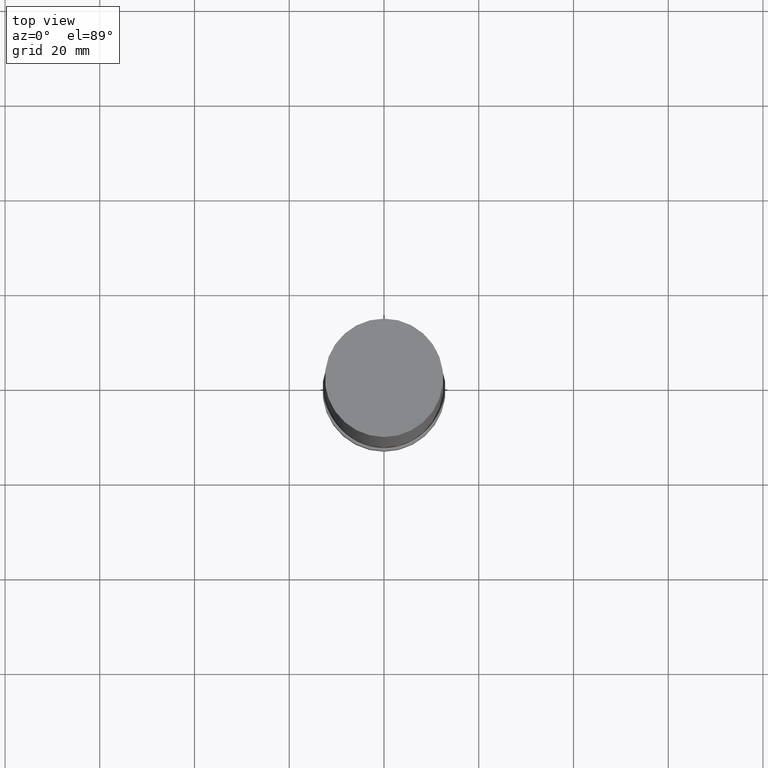
[diagram: clean part render]
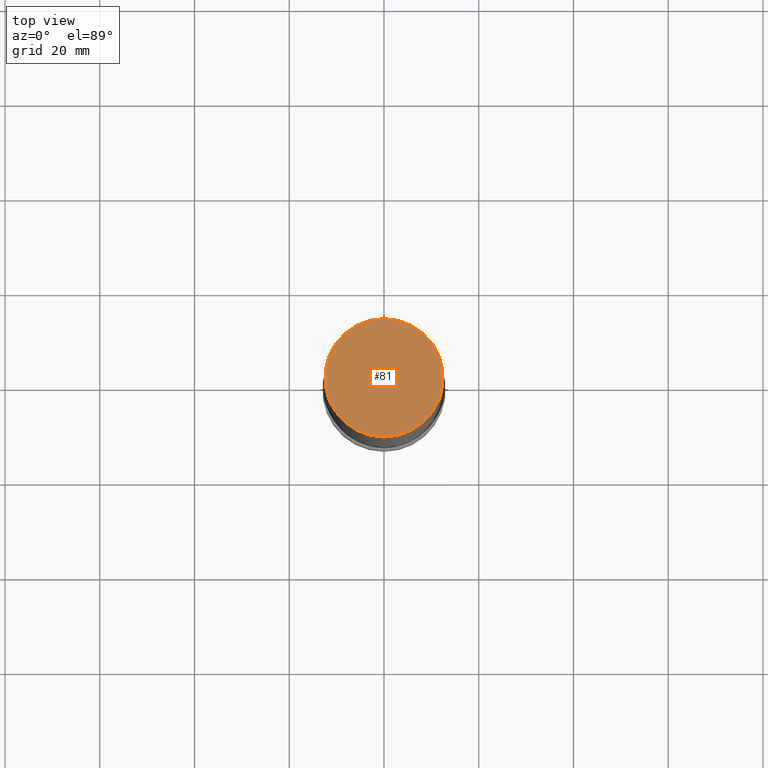
[diagram: same view with one face highlighted and labeled with its STEP entity id]
A machine part, top view. The second image highlights one B-rep face of the part: STEP entity #81.
In plain terms, the highlighted planar face has unit normal (-0, -0, 1).
Its self-contained STEP definition (entity closure, byte-faithful):
#81=ADVANCED_FACE('',(#100),#101,.T.);
#100=FACE_OUTER_BOUND('',#119,.T.);
#101=PLANE('',#120);
#119=EDGE_LOOP('',(#150));
#120=AXIS2_PLACEMENT_3D('',#151,#152,#153);
#150=ORIENTED_EDGE('',*,*,#159,.T.);
#151=CARTESIAN_POINT('',(-9.18485099360516E-015,6.24999999999998,150.0));
#152=DIRECTION('',(-6.12323399573677E-017,-1.22464679914735E-016,1.0));
#153=DIRECTION('',(-1.23259516440783E-032,1.0,1.22464679914735E-016));
#159=EDGE_CURVE('',#170,#170,#171,.T.);
#170=VERTEX_POINT('',#182);
#171=CIRCLE('',#183,12.5);
#182=CARTESIAN_POINT('',(-9.18485099360516E-015,12.5,150.0));
#183=AXIS2_PLACEMENT_3D('',#199,#200,#201);
#199=CARTESIAN_POINT('',(-9.18485099360516E-015,-1.83697019872103E-014,150.0));
#200=DIRECTION('',(-6.12323399573677E-017,-1.22464679914735E-016,1.0));
#201=DIRECTION('',(-1.23259516440783E-032,1.0,1.22464679914735E-016));